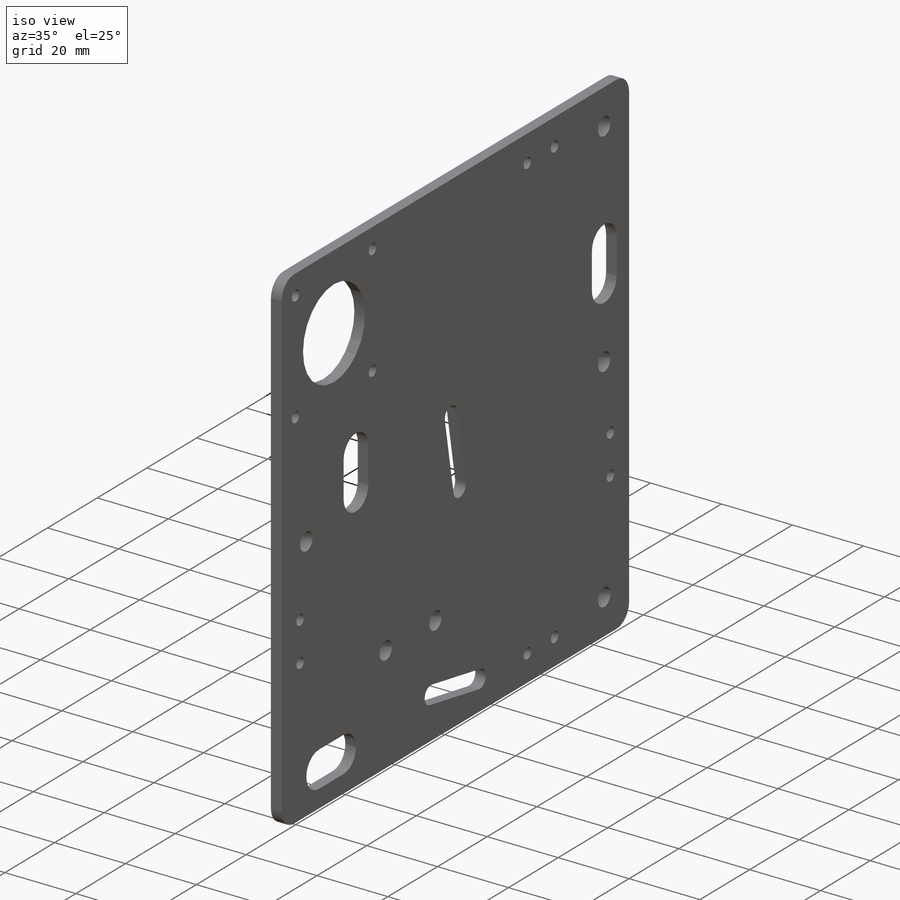
[diagram: iso view]
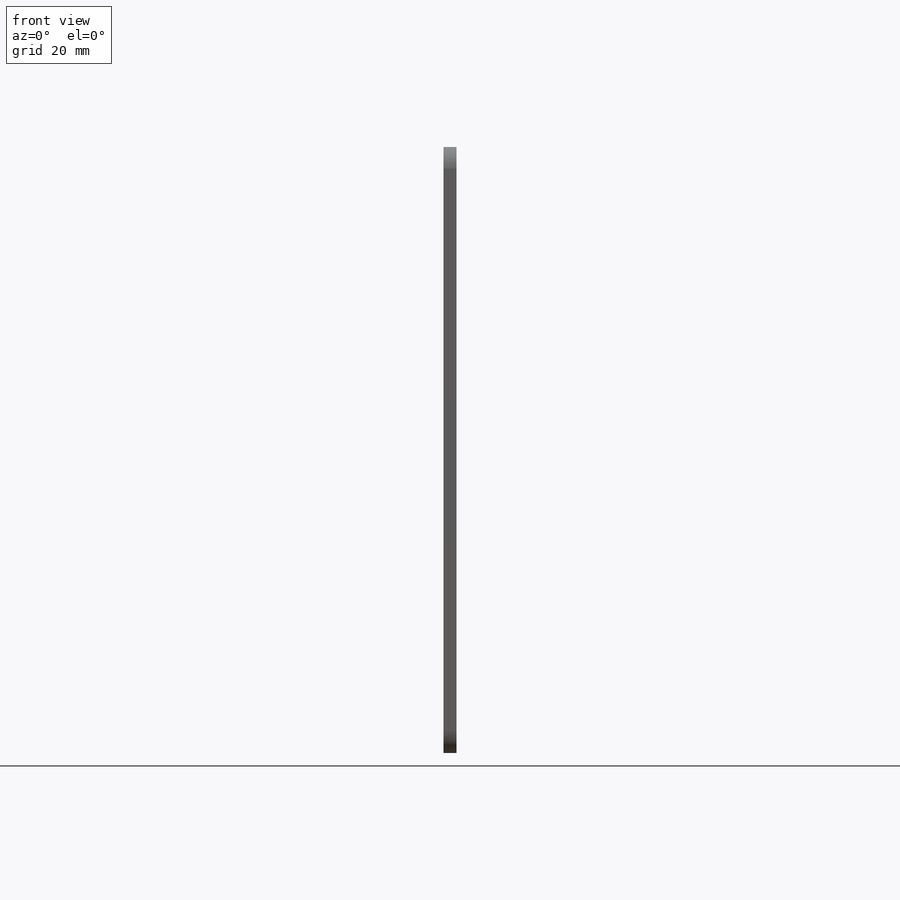
[diagram: front view]
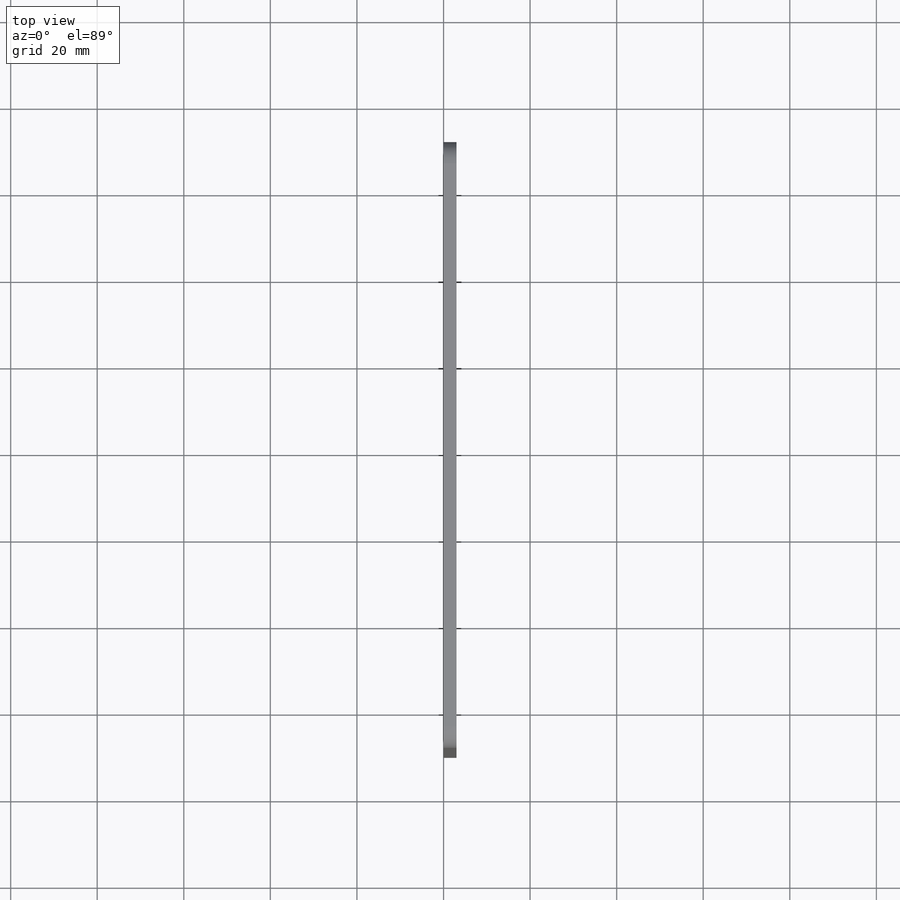
[diagram: top view]
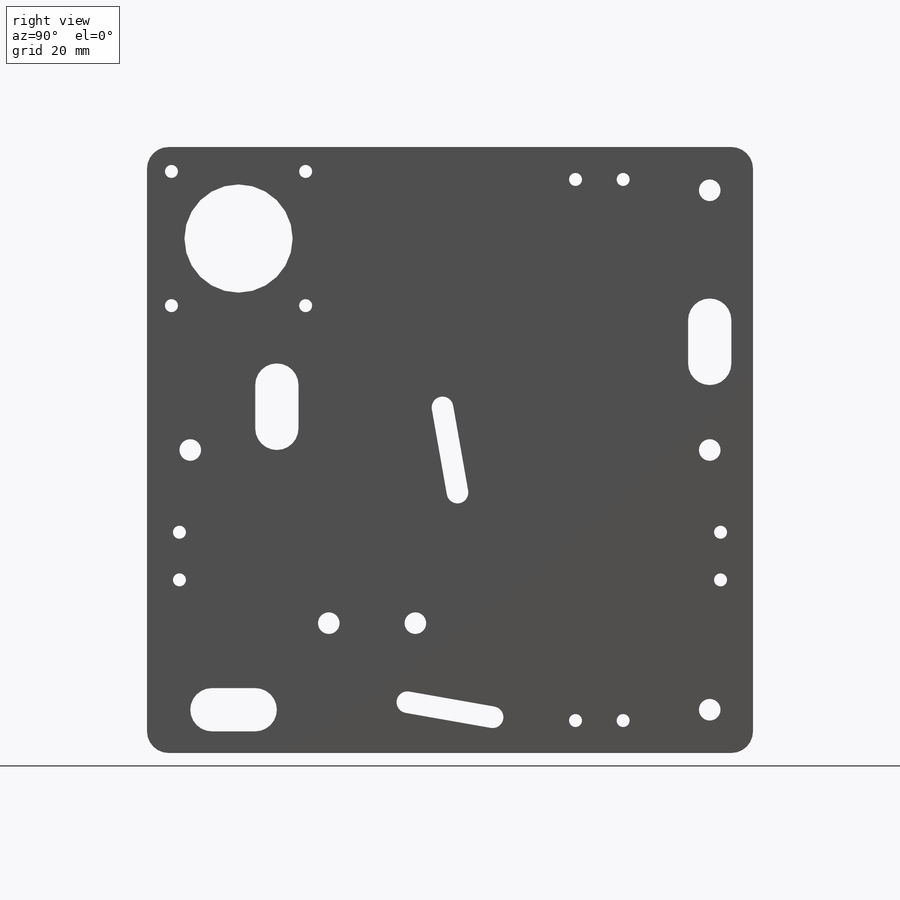
[diagram: right view]
SOLIDWORKS PART (.sldprt)
format: sldprt  version: not decoded by parser v0  size: 404,480 bytes
history: native  units: mm
features: sketch x7, cut_extrude x2, material x1, extrude x1, fillet x1, pattern_linear x1, hole x1 (+13 scaffold rows collapsed)
feature tree (27):
  scaffold x13  (default folders/planes/origin — collapsed)
  material  "Material <not specified>"
  sketch  "Sketch1"  dims[c1.D1=140.0mm c1.D2=100.0mm c1.D3=40.0mm c1.D4=40.0mm c2.D4=270.0deg c3.D4=140.0mm c3.D3=70.0mm c3.D5=20.0mm c3.D2=50.0mm]
  extrude  "Base Plate"  Depth=3mm
  fillet  "Base Plate Corner Rounding"  Radius=5mm
  sketch  "Sketch2"  dims[c1.D1=5.0mm c1.D2=5.0mm c1.D3=5.0mm c1.D5=5.0mm c1.D7=5.0mm c1.D8=~7.935057mm c2.D7=5.0mm c2.D6=5.0mm c3.D7=5.0mm c3.D4=5.0mm c3.D5=5.0mm c3.D1=5.0mm c3.D2=5.0mm c3.D3=5.0mm c3.D6=5.0mm c3.D9=5.0mm c4.D1=5.0mm c4.D9=5.0mm c5.D1=5.0mm c5.D10=5.0mm c5.D2=5.0mm c5.D9=5.0mm c6.D10=5.0mm c6.D11=5.0mm c6.D7=5.0mm c6.D1=5.0mm c6.D2=5.0mm c6.D6=5.0mm c7.D2=5.0mm c7.D4=5.0mm c7.D5=5.0mm c7.D9=2.5mm c8.D2=10.0mm c8.D3=10.0mm c8.D5=20.0mm c8.D7=60.0mm c8.D8=10.0mm c9.D7=62.5mm c9.D9=60.0mm c9.D10=10.0mm c9.D11=10.0mm c10.D10=10.0mm c10.D7=60.0mm c10.D6=30.0mm c11.D7=60.0mm c11.D5=10.0mm c11.D1=30.0mm c11.D2=70.0mm c11.D3=10.0mm c11.D6=10.0mm c11.D9=70.0mm c12.D1=30.0mm c12.D9=30.0mm c13.D1=60.0mm c13.D10=60.0mm c13.D2=80.0mm c13.D9=60.0mm c14.D10=80.0mm c14.D11=35.0mm c14.D7=60.0mm c14.D2=~92.195445mm c14.D1=10.0mm c15.D2=60.0mm c15.D6=10.0mm c16.D2=10.0mm c16.D5=60.0mm c16.D10=~14.86781mm c17.D10=10.0deg c17.D11=10.0mm c17.D12=60.0mm c17.D13=20.0mm c18.D10=~19.39963mm c19.D10=10.0deg c19.D7=~19.093751mm c20.D7=10.0deg c20.D14=60.0mm]
  cut_extrude  "V Wheel Slots and Holes"  [1 undecoded]
  sketch  "Sketch4"  dims[c1.D1=3.0mm c1.D2=3.0mm c1.D3=3.0mm c2.D2=5.65mm c2.D3=5.65mm]
  pattern_linear  "Motor Mount Holes Pattern"  Count1=2 Count2=2 Spacing1=31mm Spacing2=31mm
  sketch  "Sketch5"  dims[D1=25.0mm]
  hole  "Motor Hole"  [1 undecoded]
  sketch  "Sketch6"  dims[c1.D1=5.0mm c1.D2=5.0mm c1.D3=5.0mm c1.D4=5.0mm c2.D2=20.0mm c2.D3=20.0mm c2.D4=68.0mm]
  cut_extrude  "Threaded Rod Block Mounting Holes"  [1 undecoded]
  sketch  "Sketch7"  dims[c1.D1=3.0mm c1.D2=3.0mm c1.D3=3.0mm c1.D4=3.0mm c1.D5=3.0mm c1.D6=3.0mm c1.D7=3.0mm c1.D8=3.0mm c1.D9=3.0mm c1.D10=3.0mm c1.D11=3.0mm c1.D12=3.0mm c2.D10=3.0mm c2.D11=3.0mm c2.D13=3.0mm c2.D2=7.5mm c2.D3=7.5mm c2.D4=7.5mm c2.D5=7.5mm c2.D6=11.0mm c2.D7=11.0mm c2.D8=11.0mm c2.D9=11.0mm c3.D10=50.0mm c3.D11=50.0mm c3.D12=30.0mm c4.D10=40.0mm c4.D11=40.0mm c4.D13=40.0mm]
  sketch  "Sketch8"  dims[c1.D1=15.0mm c1.D2=5.0mm c2.D1=10.0mm c2.D3=30.0mm c2.D4=10.0mm c2.D2=10.0mm c2.D5=70.0mm c2.D6=20.0mm c2.D7=30.0mm c2.D8=60.0mm c2.D9=10.0mm c2.D10=20.0mm c3.D5=30.0mm c3.D6=10.0mm]
decode coverage: 10 of 13 modeling features carry decoded parameters
note: ~ marks probable driven/reference dimensions
note: 3 parameter values undecoded
summary: no parameter record found for 3 features
note: suppression state not decoded; provenance and decode notes live in map.json
